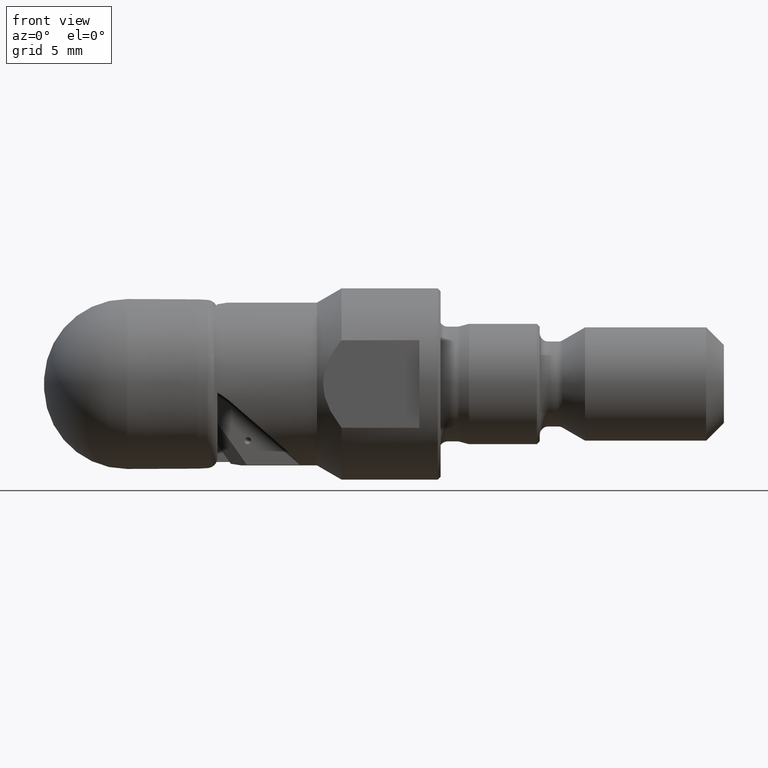
[diagram: clean part render]
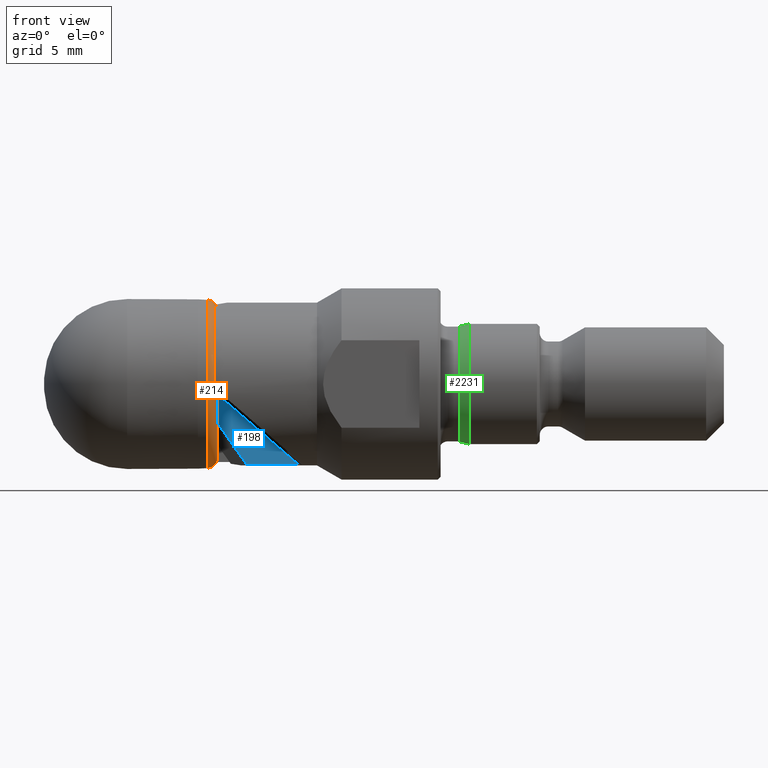
[diagram: same view with three faces highlighted in distinct colors, each labeled with its STEP entity id]
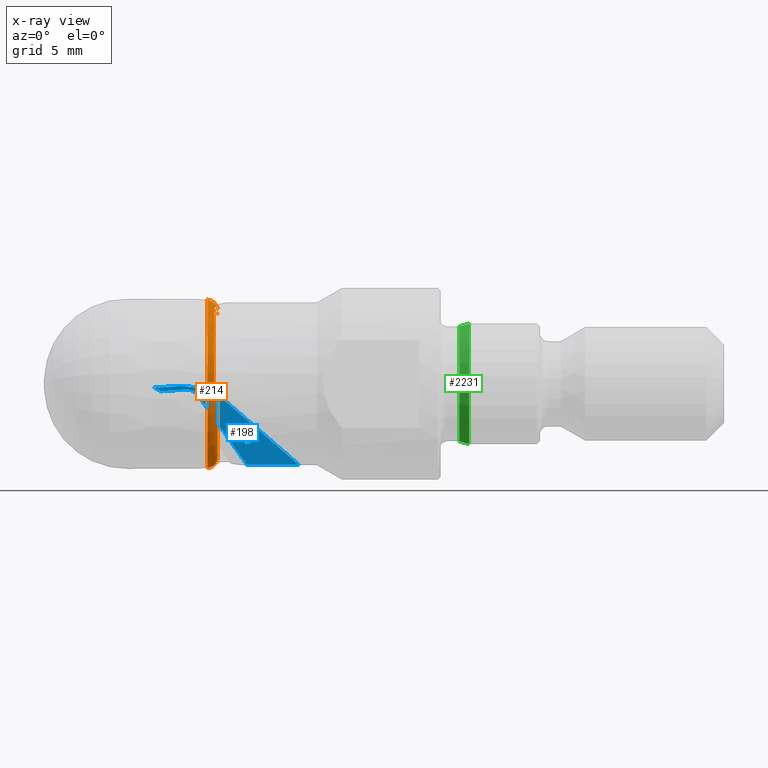
[diagram: x-ray of the same camera — body ghosted, the three highlighted faces saturated]
A machine part, front view with three faces highlighted in distinct colors.
The next image is the same camera in x-ray (body ghosted, the three faces saturated) — at least one of them is partly hidden behind the body in this view.
Their STEP definitions:

[orange] entity #214 — the highlighted toroidal blend (fillet) surface has major radius 5.1825 mm and minor (blend) radius 0.7605 mm.
#32 = EDGE_CURVE ( 'NONE', #1109, #3128, #375, .T. ) ;
#61 = CARTESIAN_POINT ( 'NONE',  ( 12.56460098119716484, -0.6265156383764611814, 5.215837680388904829 ) ) ;
#89 = AXIS2_PLACEMENT_3D ( 'NONE', #176, #200, #1661 ) ;
#99 = EDGE_CURVE ( 'NONE', #3316, #1109, #3845, .T. ) ;
#120 = ORIENTED_EDGE ( 'NONE', *, *, #955, .F. ) ;
#151 = VERTEX_POINT ( 'NONE', #2602 ) ;
#155 = CARTESIAN_POINT ( 'NONE',  ( 12.41205550651234191, -1.501617198890279559, 5.440718378872002603 ) ) ;
#159 = B_SPLINE_CURVE_WITH_KNOTS ( 'NONE', 3,
 ( #413, #3375, #3100, #61, #2195, #1334, #3127, #3149 ),
 .UNSPECIFIED., .F., .F.,
 ( 4, 2, 2, 4 ),
 ( 2.451963397566801607E-07, 0.0005273450492742070292, 0.0007908949757414324155, 0.001054444902208657693 ),
 .UNSPECIFIED. ) ;
#176 = CARTESIAN_POINT ( 'NONE',  ( 12.51307914111551867, 0.0000000000000000000, 0.0000000000000000000 ) ) ;
#183 = ORIENTED_EDGE ( 'NONE', *, *, #2593, .T. ) ;
#200 = DIRECTION ( 'NONE',  ( -1.000000000000000000, -0.0000000000000000000, -0.0000000000000000000 ) ) ;
#204 = VERTEX_POINT ( 'NONE', #2260 ) ;
#213 = CARTESIAN_POINT ( 'NONE',  ( 12.31137413421807025, -1.667284439999999757, 5.502968525818367596 ) ) ;
#214 = ADVANCED_FACE ( 'NONE', ( #3166 ), #494, .T. ) ;
#263 = DIRECTION ( 'NONE',  ( -1.000000000000000000, -0.0000000000000000000, -0.0000000000000000000 ) ) ;
#310 = CARTESIAN_POINT ( 'NONE',  ( 12.51307914111551867, 0.0000000000000000000, 0.0000000000000000000 ) ) ;
#327 = CIRCLE ( 'NONE', #1967, 0.7604629141478840282 ) ;
#364 = B_SPLINE_CURVE_WITH_KNOTS ( 'NONE', 3,
 ( #1682, #2019, #155, #2291 ),
 .UNSPECIFIED., .F., .F.,
 ( 4, 4 ),
 ( 2.629679980519395062E-05, 0.0005327701218464278143 ),
 .UNSPECIFIED. ) ;
#375 = CIRCLE ( 'NONE', #872, 0.7604629141478840282 ) ;
#413 = CARTESIAN_POINT ( 'NONE',  ( 12.43868473252604900, -1.167284440000009749, 5.480242454255536799 ) ) ;
#417 = CARTESIAN_POINT ( 'NONE',  ( 12.51307914111551867, -0.3317757203777612074, 4.893394222400596405 ) ) ;
#453 = CARTESIAN_POINT ( 'NONE',  ( 12.36872683735497702, -1.667284439999999757, 5.445064392073321713 ) ) ;
#494 = TOROIDAL_SURFACE ( 'NONE', #2144, 5.182476226876303826, 0.7604629141478839172 ) ;
#541 = CARTESIAN_POINT ( 'NONE',  ( 12.50379730802096923, -5.491073725707622089, -0.5647663245563703249 ) ) ;
#615 = DIRECTION ( 'NONE',  ( 1.000000000000000000, 0.0000000000000000000, 0.0000000000000000000 ) ) ;
#707 = CIRCLE ( 'NONE', #1274, 5.941171163388514032 ) ;
#837 = ORIENTED_EDGE ( 'NONE', *, *, #3884, .F. ) ;
#872 = AXIS2_PLACEMENT_3D ( 'NONE', #1246, #1310, #3358 ) ;
#943 = VERTEX_POINT ( 'NONE', #213 ) ;
#955 = EDGE_CURVE ( 'NONE', #943, #204, #3087, .T. ) ;
#1109 = VERTEX_POINT ( 'NONE', #2290 ) ;
#1210 = EDGE_CURVE ( 'NONE', #151, #943, #1813, .T. ) ;
#1215 = CARTESIAN_POINT ( 'NONE',  ( 12.31137413421940607, 0.0000000000000000000, 0.0000000000000000000 ) ) ;
#1246 = CARTESIAN_POINT ( 'NONE',  ( 11.80519174541697680, 0.0000000000000000000, 5.182476226876303826 ) ) ;
#1250 = EDGE_LOOP ( 'NONE', ( #837, #3331, #3684, #120, #2351, #1999, #183, #2082, #2902, #3892 ) ) ;
#1256 = DIRECTION ( 'NONE',  ( 0.0000000000000000000, 0.0000000000000000000, 1.000000000000000000 ) ) ;
#1274 = AXIS2_PLACEMENT_3D ( 'NONE', #3674, #1850, #1256 ) ;
#1276 = EDGE_CURVE ( 'NONE', #2886, #1678, #2836, .T. ) ;
#1310 = DIRECTION ( 'NONE',  ( 0.0000000000000000000, -1.000000000000000000, 0.0000000000000000000 ) ) ;
#1334 = CARTESIAN_POINT ( 'NONE',  ( 12.55809682399898364, -0.4252140668329715267, 5.038189348546002755 ) ) ;
#1384 = AXIS2_PLACEMENT_3D ( 'NONE', #1215, #615, #2421 ) ;
#1437 = DIRECTION ( 'NONE',  ( -1.000000000000000000, -0.0000000000000000000, -0.0000000000000000000 ) ) ;
#1561 = EDGE_CURVE ( 'NONE', #204, #1678, #2436, .T. ) ;
#1609 = EDGE_CURVE ( 'NONE', #2267, #3128, #707, .T. ) ;
#1661 = DIRECTION ( 'NONE',  ( 0.0000000000000000000, 0.0000000000000000000, 1.000000000000000000 ) ) ;
#1662 = DIRECTION ( 'NONE',  ( 0.0000000000000000000, -1.224646799147352961E-16, 1.000000000000000000 ) ) ;
#1678 = VERTEX_POINT ( 'NONE', #3367 ) ;
#1682 = CARTESIAN_POINT ( 'NONE',  ( 12.43868473252604900, -1.167284440000009749, 5.480242454255536799 ) ) ;
#1775 = CARTESIAN_POINT ( 'NONE',  ( 12.56901073712824868, -5.181535547861410684, -0.6017569238467475046 ) ) ;
#1810 = VERTEX_POINT ( 'NONE', #2537 ) ;
#1813 = B_SPLINE_CURVE_WITH_KNOTS ( 'NONE', 3,
 ( #3499, #453, #2268, #2310 ),
 .UNSPECIFIED., .F., .F.,
 ( 4, 4 ),
 ( 0.0001712341148754152045, 0.0002920828704399035182 ),
 .UNSPECIFIED. ) ;
#1850 = DIRECTION ( 'NONE',  ( -1.000000000000000000, -0.0000000000000000000, -0.0000000000000000000 ) ) ;
#1946 = DIRECTION ( 'NONE',  ( -0.0000000000000000000, 1.000000000000000000, 1.224646799147353207E-16 ) ) ;
#1967 = AXIS2_PLACEMENT_3D ( 'NONE', #3203, #1946, #1662 ) ;
#1999 = ORIENTED_EDGE ( 'NONE', *, *, #3494, .F. ) ;
#2019 = CARTESIAN_POINT ( 'NONE',  ( 12.42687858428119974, -1.334889224953440090, 5.462719335371849283 ) ) ;
#2082 = ORIENTED_EDGE ( 'NONE', *, *, #99, .T. ) ;
#2127 = CARTESIAN_POINT ( 'NONE',  ( 12.42105874628484763, -5.628692678111480774, -0.5184536789414864177 ) ) ;
#2144 = AXIS2_PLACEMENT_3D ( 'NONE', #2640, #263, #3306 ) ;
#2195 = CARTESIAN_POINT ( 'NONE',  ( 12.56863464015442844, -0.5546934427031635639, 5.161885943963137713 ) ) ;
#2250 = CARTESIAN_POINT ( 'NONE',  ( 11.85701680793526869, 7.275836248430300114E-16, -5.941171163388514032 ) ) ;
#2260 = CARTESIAN_POINT ( 'NONE',  ( 12.31137413421940607, -5.731266653231965158, -0.4637699317024255308 ) ) ;
#2267 = VERTEX_POINT ( 'NONE', #2250 ) ;
#2268 = CARTESIAN_POINT ( 'NONE',  ( 12.34108640531728973, -1.667284439999999757, 5.475278099807344923 ) ) ;
#2290 = CARTESIAN_POINT ( 'NONE',  ( 12.51307914111551867, 0.0000000000000000000, 4.904628644908371804 ) ) ;
#2291 = CARTESIAN_POINT ( 'NONE',  ( 12.39358266143596410, -1.667284439999993984, 5.413300303672548885 ) ) ;
#2310 = CARTESIAN_POINT ( 'NONE',  ( 12.31137413421807025, -1.667284439999999757, 5.502968525818367596 ) ) ;
#2351 = ORIENTED_EDGE ( 'NONE', *, *, #1210, .F. ) ;
#2380 = CARTESIAN_POINT ( 'NONE',  ( 12.54205256464376639, -4.943810414610851467, -0.5862756364068523185 ) ) ;
#2416 = DIRECTION ( 'NONE',  ( 0.0000000000000000000, 0.0000000000000000000, 1.000000000000000000 ) ) ;
#2421 = DIRECTION ( 'NONE',  ( 0.0000000000000000000, 0.0000000000000000000, 1.000000000000000000 ) ) ;
#2436 = B_SPLINE_CURVE_WITH_KNOTS ( 'NONE', 3,
 ( #3569, #2127, #541, #2723, #1775, #2974, #2380, #3322 ),
 .UNSPECIFIED., .F., .F.,
 ( 4, 2, 2, 4 ),
 ( 0.0002514159504306297645, 0.0007275088253802415583, 0.0009655552628550480515, 0.001203601700329854545 ),
 .UNSPECIFIED. ) ;
#2537 = CARTESIAN_POINT ( 'NONE',  ( 12.43868473252604900, -1.167284440000009749, 5.480242454255536799 ) ) ;
#2593 = EDGE_CURVE ( 'NONE', #1810, #3316, #159, .T. ) ;
#2602 = CARTESIAN_POINT ( 'NONE',  ( 12.39358266143596410, -1.667284439999993984, 5.413300303672548885 ) ) ;
#2640 = CARTESIAN_POINT ( 'NONE',  ( 11.80519174541697680, 0.0000000000000000000, 0.0000000000000000000 ) ) ;
#2723 = CARTESIAN_POINT ( 'NONE',  ( 12.56095138339833994, -5.262910384934756713, -0.5970904045523705017 ) ) ;
#2836 = CIRCLE ( 'NONE', #2911, 4.904628644908371804 ) ;
#2886 = VERTEX_POINT ( 'NONE', #3878 ) ;
#2902 = ORIENTED_EDGE ( 'NONE', *, *, #32, .T. ) ;
#2911 = AXIS2_PLACEMENT_3D ( 'NONE', #310, #1437, #2416 ) ;
#2974 = CARTESIAN_POINT ( 'NONE',  ( 12.55961888290050688, -5.023075620814454467, -0.5963811400695366860 ) ) ;
#3087 = CIRCLE ( 'NONE', #1384, 5.750000000000000000 ) ;
#3100 = CARTESIAN_POINT ( 'NONE',  ( 12.53544525920352726, -0.8498866324183902421, 5.358976170416496210 ) ) ;
#3127 = CARTESIAN_POINT ( 'NONE',  ( 12.54370911065481664, -0.3680753130010862018, 4.969149884114139937 ) ) ;
#3128 = VERTEX_POINT ( 'NONE', #3932 ) ;
#3149 = CARTESIAN_POINT ( 'NONE',  ( 12.51307914111551867, -0.3317757203777612074, 4.893394222400596405 ) ) ;
#3166 = FACE_OUTER_BOUND ( 'NONE', #1250, .T. ) ;
#3203 = CARTESIAN_POINT ( 'NONE',  ( 11.80519174541697680, 6.346702922901318029E-16, -5.182476226876303826 ) ) ;
#3306 = DIRECTION ( 'NONE',  ( 0.0000000000000000000, 0.0000000000000000000, 1.000000000000000000 ) ) ;
#3316 = VERTEX_POINT ( 'NONE', #417 ) ;
#3322 = CARTESIAN_POINT ( 'NONE',  ( 12.51307914111551867, -4.871377741933524241, -0.5701412455263810131 ) ) ;
#3331 = ORIENTED_EDGE ( 'NONE', *, *, #1276, .T. ) ;
#3358 = DIRECTION ( 'NONE',  ( 0.0000000000000000000, 0.0000000000000000000, -1.000000000000000000 ) ) ;
#3367 = CARTESIAN_POINT ( 'NONE',  ( 12.51307914111551867, -4.871377741933524241, -0.5701412455263810131 ) ) ;
#3375 = CARTESIAN_POINT ( 'NONE',  ( 12.49453807276370831, -1.006059085020580612, 5.428592697855465943 ) ) ;
#3494 = EDGE_CURVE ( 'NONE', #1810, #151, #364, .T. ) ;
#3499 = CARTESIAN_POINT ( 'NONE',  ( 12.39358266143596410, -1.667284439999993984, 5.413300303672548885 ) ) ;
#3569 = CARTESIAN_POINT ( 'NONE',  ( 12.31137413421940607, -5.731266653231965158, -0.4637699317024255308 ) ) ;
#3674 = CARTESIAN_POINT ( 'NONE',  ( 11.85701680793526869, 0.0000000000000000000, 0.0000000000000000000 ) ) ;
#3684 = ORIENTED_EDGE ( 'NONE', *, *, #1561, .F. ) ;
#3845 = CIRCLE ( 'NONE', #89, 4.904628644908371804 ) ;
#3878 = CARTESIAN_POINT ( 'NONE',  ( 12.51307914111551867, 6.641137009711881393E-16, -4.904628644908371804 ) ) ;
#3884 = EDGE_CURVE ( 'NONE', #2886, #2267, #327, .T. ) ;
#3892 = ORIENTED_EDGE ( 'NONE', *, *, #1609, .F. ) ;
#3932 = CARTESIAN_POINT ( 'NONE',  ( 11.85701680793526869, 0.0000000000000000000, 5.941171163388514032 ) ) ;

[blue] entity #198 — the highlighted planar face has unit normal (0, 1, 0).
#1 = ORIENTED_EDGE ( 'NONE', *, *, #1486, .F. ) ;
#122 = EDGE_CURVE ( 'NONE', #2065, #3741, #802, .T. ) ;
#146 = DIRECTION ( 'NONE',  ( 0.0000000000000000000, 0.0000000000000000000, -1.000000000000000000 ) ) ;
#198 = ADVANCED_FACE ( 'NONE', ( #3798, #3145 ), #2242, .F. ) ;
#252 = AXIS2_PLACEMENT_3D ( 'NONE', #2854, #3815, #146 ) ;
#289 = CARTESIAN_POINT ( 'NONE',  ( 8.396398052133275058, -0.7377038100000001819, -0.4434278011829809185 ) ) ;
#292 = LINE ( 'NONE', #3021, #2710 ) ;
#383 = VERTEX_POINT ( 'NONE', #2749 ) ;
#391 = AXIS2_PLACEMENT_3D ( 'NONE', #2053, #3874, #2695 ) ;
#507 = CARTESIAN_POINT ( 'NONE',  ( 13.22323844240306734, -0.7377038100000001819, -1.310393682079559863 ) ) ;
#530 = EDGE_LOOP ( 'NONE', ( #1231, #2553, #1379, #1, #2563, #3483, #3920, #1552, #1164 ) ) ;
#539 = CARTESIAN_POINT ( 'NONE',  ( 10.08048253655982940, -0.7377038100000001819, -4.938490334084222333 ) ) ;
#566 = DIRECTION ( 'NONE',  ( 0.0000000000000000000, 0.0000000000000000000, -1.000000000000000000 ) ) ;
#594 = VERTEX_POINT ( 'NONE', #2815 ) ;
#766 = DIRECTION ( 'NONE',  ( -0.7558534691676381811, -0.0000000000000000000, 0.6547408137173412745 ) ) ;
#802 = LINE ( 'NONE', #507, #2326 ) ;
#917 = CARTESIAN_POINT ( 'NONE',  ( 14.62781713006279283, -0.7377038100000001819, -5.702481309808169030 ) ) ;
#933 = DIRECTION ( 'NONE',  ( 0.0000000000000000000, 0.0000000000000000000, 1.000000000000000000 ) ) ;
#935 = AXIS2_PLACEMENT_3D ( 'NONE', #3511, #3492, #3442 ) ;
#937 = VERTEX_POINT ( 'NONE', #2635 ) ;
#941 = DIRECTION ( 'NONE',  ( 0.0000000000000000000, -1.000000000000000000, 0.0000000000000000000 ) ) ;
#954 = CARTESIAN_POINT ( 'NONE',  ( 0.08132669410520618203, -0.7377038100000001819, -1.134565888313824100 ) ) ;
#1063 = VECTOR ( 'NONE', #1329, 1000.000000000000000 ) ;
#1138 = CIRCLE ( 'NONE', #252, 0.2499999999999993616 ) ;
#1164 = ORIENTED_EDGE ( 'NONE', *, *, #2168, .T. ) ;
#1231 = ORIENTED_EDGE ( 'NONE', *, *, #2500, .T. ) ;
#1261 = VERTEX_POINT ( 'NONE', #3638 ) ;
#1289 = EDGE_CURVE ( 'NONE', #3114, #937, #3846, .T. ) ;
#1329 = DIRECTION ( 'NONE',  ( -1.000000000000000000, -0.0000000000000000000, -0.0000000000000000000 ) ) ;
#1339 = CARTESIAN_POINT ( 'NONE',  ( 10.08048253655982940, -0.7377038100000001819, -0.1384903340842227604 ) ) ;
#1379 = ORIENTED_EDGE ( 'NONE', *, *, #3334, .F. ) ;
#1416 = ORIENTED_EDGE ( 'NONE', *, *, #2869, .F. ) ;
#1421 = EDGE_CURVE ( 'NONE', #1261, #383, #1138, .T. ) ;
#1427 = DIRECTION ( 'NONE',  ( 2.529805069132843942E-15, 0.0000000000000000000, 1.000000000000000000 ) ) ;
#1473 = CARTESIAN_POINT ( 'NONE',  ( 8.068229645560066388, -0.7377038099999991827, -0.2704146541821110250 ) ) ;
#1486 = EDGE_CURVE ( 'NONE', #2570, #2309, #2472, .T. ) ;
#1552 = ORIENTED_EDGE ( 'NONE', *, *, #1966, .T. ) ;
#1570 = VERTEX_POINT ( 'NONE', #917 ) ;
#1572 = DIRECTION ( 'NONE',  ( -0.9974407829309438478, -0.0000000000000000000, -0.07149744433268612198 ) ) ;
#1654 = VECTOR ( 'NONE', #2598, 1000.000000000000114 ) ;
#1688 = CIRCLE ( 'NONE', #3908, 4.799999999999999822 ) ;
#1807 = CARTESIAN_POINT ( 'NONE',  ( 10.08048253655982940, -0.7377038100000001819, -4.938490334084222333 ) ) ;
#1911 = CARTESIAN_POINT ( 'NONE',  ( 13.22323844240306734, -0.7377038100000001819, -1.310393682079559863 ) ) ;
#1916 = LINE ( 'NONE', #954, #3861 ) ;
#1966 = EDGE_CURVE ( 'NONE', #3741, #3548, #3281, .T. ) ;
#2045 = EDGE_CURVE ( 'NONE', #1570, #2570, #2853, .T. ) ;
#2053 = CARTESIAN_POINT ( 'NONE',  ( 10.35086309331376242, -0.7377038100000001819, -1.589910903927784558 ) ) ;
#2065 = VERTEX_POINT ( 'NONE', #3529 ) ;
#2124 = DIRECTION ( 'NONE',  ( -0.0000000000000000000, -1.000000000000000000, -0.0000000000000000000 ) ) ;
#2149 = AXIS2_PLACEMENT_3D ( 'NONE', #3040, #941, #566 ) ;
#2168 = EDGE_CURVE ( 'NONE', #3548, #594, #1688, .T. ) ;
#2189 = CARTESIAN_POINT ( 'NONE',  ( -4.762142644779060241, -0.7377038100000001819, -5.702481309808168142 ) ) ;
#2242 = PLANE ( 'NONE',  #935 ) ;
#2309 = VERTEX_POINT ( 'NONE', #3133 ) ;
#2326 = VECTOR ( 'NONE', #766, 1000.000000000000114 ) ;
#2472 = CIRCLE ( 'NONE', #391, 1.188425295902603152 ) ;
#2500 = EDGE_CURVE ( 'NONE', #594, #3114, #292, .T. ) ;
#2553 = ORIENTED_EDGE ( 'NONE', *, *, #1289, .T. ) ;
#2563 = ORIENTED_EDGE ( 'NONE', *, *, #2045, .F. ) ;
#2570 = VERTEX_POINT ( 'NONE', #2736 ) ;
#2598 = DIRECTION ( 'NONE',  ( -0.5754335553935329139, -0.0000000000000000000, 0.8178485332426523868 ) ) ;
#2635 = CARTESIAN_POINT ( 'NONE',  ( 8.562284846828521978, -0.7377038100000001819, -0.5266432489062107258 ) ) ;
#2695 = DIRECTION ( 'NONE',  ( 0.0000000000000000000, 0.0000000000000000000, -1.000000000000000000 ) ) ;
#2710 = VECTOR ( 'NONE', #3000, 1000.000000000000227 ) ;
#2734 = CARTESIAN_POINT ( 'NONE',  ( 8.229002526668994122, -0.7377038100000001819, -0.3629669559176495475 ) ) ;
#2736 = CARTESIAN_POINT ( 'NONE',  ( 11.48556647712370982, -0.7377038100000002929, -1.236483525772475334 ) ) ;
#2749 = CARTESIAN_POINT ( 'NONE',  ( 14.70000000000000107, -0.7377038100000001819, -3.750000000000000888 ) ) ;
#2815 = CARTESIAN_POINT ( 'NONE',  ( 9.737294803762935658, -0.7377038100000001819, -0.1507745760156920523 ) ) ;
#2853 = LINE ( 'NONE', #2893, #1654 ) ;
#2854 = CARTESIAN_POINT ( 'NONE',  ( 14.70000000000000107, -0.7377038100000001819, -4.000000000000000000 ) ) ;
#2869 = EDGE_CURVE ( 'NONE', #383, #1261, #3532, .T. ) ;
#2893 = CARTESIAN_POINT ( 'NONE',  ( 12.76253901085666342, -0.7377038100000001819, -3.051410722103105488 ) ) ;
#2918 = EDGE_CURVE ( 'NONE', #2065, #1570, #3706, .T. ) ;
#3000 = DIRECTION ( 'NONE',  ( -0.9974407829309438478, 0.0000000000000000000, -0.07149744433268601096 ) ) ;
#3021 = CARTESIAN_POINT ( 'NONE',  ( 0.6141034769284606787, -0.7377038100000001819, -0.8047330617616581527 ) ) ;
#3040 = CARTESIAN_POINT ( 'NONE',  ( 14.70000000000000107, -0.7377038100000001819, -4.000000000000000000 ) ) ;
#3114 = VERTEX_POINT ( 'NONE', #1473 ) ;
#3133 = CARTESIAN_POINT ( 'NONE',  ( 10.26558313979521131, -0.7374310458215643793, -0.4046225300696107419 ) ) ;
#3145 = FACE_OUTER_BOUND ( 'NONE', #530, .T. ) ;
#3248 = CARTESIAN_POINT ( 'NONE',  ( 8.562284846828521978, -0.7377038100000001819, -0.5266432489062107258 ) ) ;
#3281 = CIRCLE ( 'NONE', #3805, 4.799999999999999822 ) ;
#3293 = CARTESIAN_POINT ( 'NONE',  ( 8.068229645560066388, -0.7377038099999991827, -0.2704146541821110250 ) ) ;
#3334 = EDGE_CURVE ( 'NONE', #2309, #937, #1916, .T. ) ;
#3442 = DIRECTION ( 'NONE',  ( 0.0000000000000000000, -0.0000000000000000000, 1.000000000000000000 ) ) ;
#3483 = ORIENTED_EDGE ( 'NONE', *, *, #2918, .F. ) ;
#3492 = DIRECTION ( 'NONE',  ( 0.0000000000000000000, 1.000000000000000000, 0.0000000000000000000 ) ) ;
#3511 = CARTESIAN_POINT ( 'NONE',  ( 10.08048253655982940, -0.7377038100000001819, -4.938490334084222333 ) ) ;
#3529 = CARTESIAN_POINT ( 'NONE',  ( 18.29360308250951661, -0.7377038100000001819, -5.702481309808168142 ) ) ;
#3532 = CIRCLE ( 'NONE', #2149, 0.2499999999999993616 ) ;
#3548 = VERTEX_POINT ( 'NONE', #1339 ) ;
#3563 = EDGE_LOOP ( 'NONE', ( #3582, #1416 ) ) ;
#3582 = ORIENTED_EDGE ( 'NONE', *, *, #1421, .F. ) ;
#3585 = DIRECTION ( 'NONE',  ( -0.0000000000000000000, -1.000000000000000000, -0.0000000000000000000 ) ) ;
#3638 = CARTESIAN_POINT ( 'NONE',  ( 14.70000000000000107, -0.7377038100000001819, -4.249999999999999112 ) ) ;
#3706 = LINE ( 'NONE', #2189, #1063 ) ;
#3741 = VERTEX_POINT ( 'NONE', #1911 ) ;
#3798 = FACE_BOUND ( 'NONE', #3563, .T. ) ;
#3805 = AXIS2_PLACEMENT_3D ( 'NONE', #539, #3585, #1427 ) ;
#3815 = DIRECTION ( 'NONE',  ( 0.0000000000000000000, -1.000000000000000000, 0.0000000000000000000 ) ) ;
#3846 = B_SPLINE_CURVE_WITH_KNOTS ( 'NONE', 3,
 ( #3293, #2734, #289, #3248 ),
 .UNSPECIFIED., .F., .F.,
 ( 4, 4 ),
 ( 0.0002343757476254495228, 0.0007907791548811224933 ),
 .UNSPECIFIED. ) ;
#3861 = VECTOR ( 'NONE', #1572, 1000.000000000000227 ) ;
#3874 = DIRECTION ( 'NONE',  ( 0.0000000000000000000, -1.000000000000000000, 0.0000000000000000000 ) ) ;
#3908 = AXIS2_PLACEMENT_3D ( 'NONE', #1807, #2124, #933 ) ;
#3920 = ORIENTED_EDGE ( 'NONE', *, *, #122, .T. ) ;

[green] entity #2231 — the highlighted conical surface has half-angle 15 deg.
#22 = CARTESIAN_POINT ( 'NONE',  ( 30.31688217999999679, 0.0000000000000000000, -4.250000000000000000 ) ) ;
#29 = DIRECTION ( 'NONE',  ( 0.9659258262890686453, 3.169619151431752615E-17, 0.2588190451025197403 ) ) ;
#66 = EDGE_CURVE ( 'NONE', #1108, #2565, #397, .T. ) ;
#148 = DIRECTION ( 'NONE',  ( 0.0000000000000000000, 0.0000000000000000000, 1.000000000000000000 ) ) ;
#210 = EDGE_CURVE ( 'NONE', #2565, #1976, #2391, .T. ) ;
#295 = DIRECTION ( 'NONE',  ( -1.000000000000000000, -0.0000000000000000000, -0.0000000000000000000 ) ) ;
#345 = LINE ( 'NONE', #2461, #2633 ) ;
#397 = LINE ( 'NONE', #2477, #1761 ) ;
#536 = ORIENTED_EDGE ( 'NONE', *, *, #66, .T. ) ;
#881 = EDGE_CURVE ( 'NONE', #1108, #3109, #1643, .T. ) ;
#957 = CARTESIAN_POINT ( 'NONE',  ( 30.31688217999999679, 0.0000000000000000000, 0.0000000000000000000 ) ) ;
#965 = DIRECTION ( 'NONE',  ( 0.9659258262890686453, 0.0000000000000000000, -0.2588190451025197403 ) ) ;
#1108 = VERTEX_POINT ( 'NONE', #1419 ) ;
#1419 = CARTESIAN_POINT ( 'NONE',  ( 29.64677194699529750, 4.984856833207990521E-16, -4.070444504226559346 ) ) ;
#1428 = CARTESIAN_POINT ( 'NONE',  ( 29.64677194699529750, 0.0000000000000000000, 0.0000000000000000000 ) ) ;
#1643 = CIRCLE ( 'NONE', #3796, 4.070444504226560234 ) ;
#1698 = AXIS2_PLACEMENT_3D ( 'NONE', #3181, #1972, #148 ) ;
#1761 = VECTOR ( 'NONE', #965, 999.9999999999998863 ) ;
#1794 = AXIS2_PLACEMENT_3D ( 'NONE', #957, #2167, #3365 ) ;
#1972 = DIRECTION ( 'NONE',  ( -1.000000000000000000, -0.0000000000000000000, -0.0000000000000000000 ) ) ;
#1976 = VERTEX_POINT ( 'NONE', #2658 ) ;
#2141 = DIRECTION ( 'NONE',  ( 0.0000000000000000000, 0.0000000000000000000, 1.000000000000000000 ) ) ;
#2167 = DIRECTION ( 'NONE',  ( 1.000000000000000000, 0.0000000000000000000, 0.0000000000000000000 ) ) ;
#2225 = EDGE_CURVE ( 'NONE', #3109, #1976, #345, .T. ) ;
#2231 = ADVANCED_FACE ( 'NONE', ( #3667 ), #2988, .T. ) ;
#2307 = ORIENTED_EDGE ( 'NONE', *, *, #210, .T. ) ;
#2391 = CIRCLE ( 'NONE', #1698, 4.250000000000000000 ) ;
#2393 = EDGE_LOOP ( 'NONE', ( #3428, #2933, #536, #2307 ) ) ;
#2461 = CARTESIAN_POINT ( 'NONE',  ( 30.31688217999999679, 5.204748896376250699E-16, 4.250000000000000000 ) ) ;
#2477 = CARTESIAN_POINT ( 'NONE',  ( 30.31688217999999679, 0.0000000000000000000, -4.250000000000000000 ) ) ;
#2565 = VERTEX_POINT ( 'NONE', #22 ) ;
#2633 = VECTOR ( 'NONE', #29, 999.9999999999998863 ) ;
#2658 = CARTESIAN_POINT ( 'NONE',  ( 30.31688217999999679, 5.204748896376250699E-16, 4.250000000000000000 ) ) ;
#2933 = ORIENTED_EDGE ( 'NONE', *, *, #881, .F. ) ;
#2988 = CONICAL_SURFACE ( 'NONE', #1794, 4.250000000000000000, 0.2617993877991484641 ) ;
#3109 = VERTEX_POINT ( 'NONE', #3219 ) ;
#3181 = CARTESIAN_POINT ( 'NONE',  ( 30.31688217999999679, 0.0000000000000000000, 0.0000000000000000000 ) ) ;
#3219 = CARTESIAN_POINT ( 'NONE',  ( 29.64677194699529750, 0.0000000000000000000, 4.070444504226559346 ) ) ;
#3365 = DIRECTION ( 'NONE',  ( 0.0000000000000000000, 0.0000000000000000000, -1.000000000000000000 ) ) ;
#3428 = ORIENTED_EDGE ( 'NONE', *, *, #2225, .F. ) ;
#3667 = FACE_OUTER_BOUND ( 'NONE', #2393, .T. ) ;
#3796 = AXIS2_PLACEMENT_3D ( 'NONE', #1428, #295, #2141 ) ;